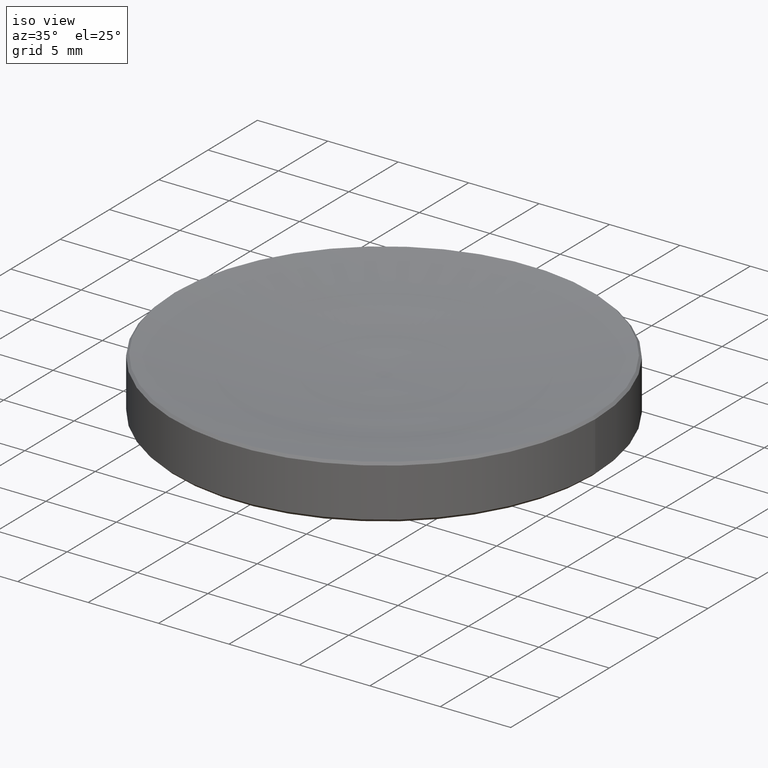
[diagram: clean part render]
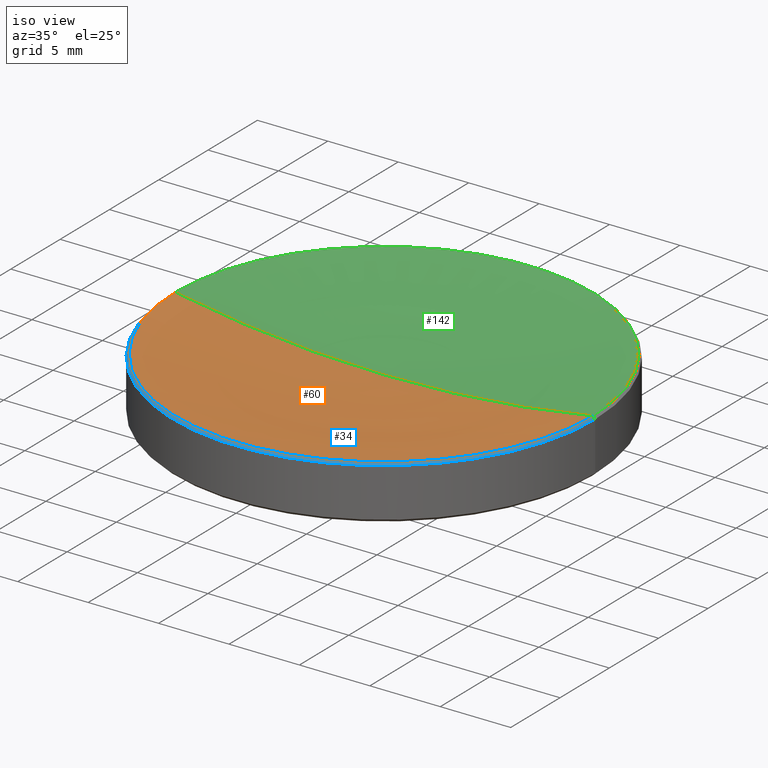
[diagram: same view with three faces highlighted in distinct colors, each labeled with its STEP entity id]
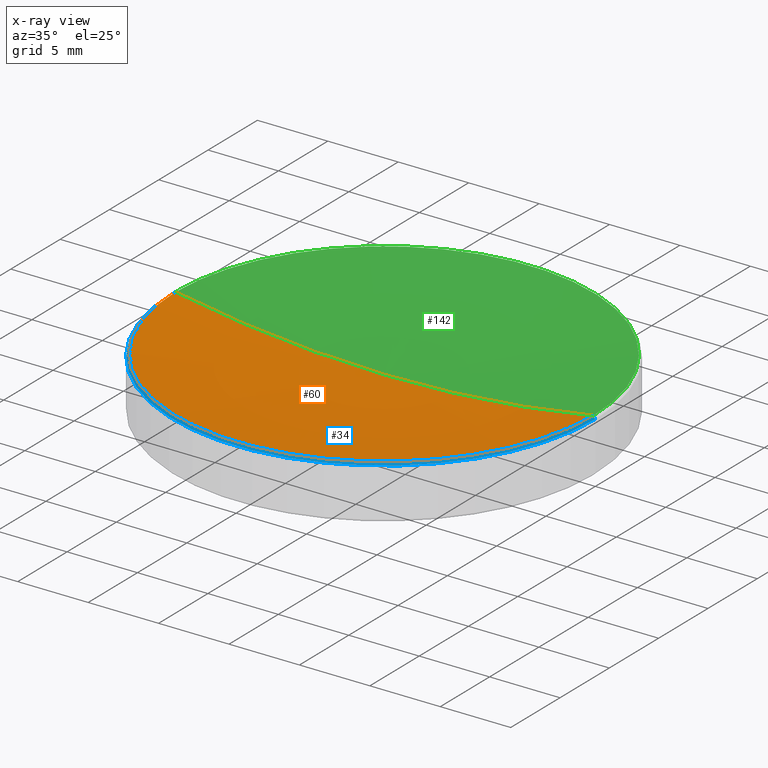
[diagram: x-ray of the same camera — body ghosted, the three highlighted faces saturated]
A machine part, iso view with three faces highlighted in distinct colors.
The next image is the same camera in x-ray (body ghosted, the three faces saturated) — at least one of them is partly hidden behind the body in this view.
Their STEP definitions:

[orange] entity #60 — the highlighted toroidal blend (fillet) surface has major radius 0.0166 mm and minor (blend) radius 82.62 mm.
#1 = EDGE_CURVE ( 'NONE', #86, #47, #165, .T. ) ;
#2 = DIRECTION ( 'NONE',  ( 1.000000000000000000, 0.000000000000000000, 0.000000000000000000 ) ) ;
#7 = CARTESIAN_POINT ( 'NONE',  ( 0.000000000000000000, 0.000000000000000000, 85.11999833166460405 ) ) ;
#20 = EDGE_LOOP ( 'NONE', ( #49, #140, #237 ) ) ;
#23 = EDGE_CURVE ( 'NONE', #90, #47, #71, .T. ) ;
#32 = DIRECTION ( 'NONE',  ( 1.000000000000000000, 0.000000000000000000, 0.000000000000000000 ) ) ;
#36 = AXIS2_PLACEMENT_3D ( 'NONE', #111, #166, #2 ) ;
#37 = AXIS2_PLACEMENT_3D ( 'NONE', #113, #93, #249 ) ;
#47 = VERTEX_POINT ( 'NONE', #226 ) ;
#49 = ORIENTED_EDGE ( 'NONE', *, *, #23, .F. ) ;
#58 = CIRCLE ( 'NONE', #37, 82.62000000000000455 ) ;
#60 = ADVANCED_FACE ( 'NONE', ( #250 ), #106, .F. ) ;
#68 = DIRECTION ( 'NONE',  ( 0.000000000000000000, 0.000000000000000000, -1.000000000000000000 ) ) ;
#71 = CIRCLE ( 'NONE', #156, 82.62000000000000455 ) ;
#74 = DIRECTION ( 'NONE',  ( -0.000000000000000000, -0.000000000000000000, 1.000000000000000000 ) ) ;
#86 = VERTEX_POINT ( 'NONE', #234 ) ;
#90 = VERTEX_POINT ( 'NONE', #117 ) ;
#93 = DIRECTION ( 'NONE',  ( 1.224646799147353207E-16, 1.000000000000000000, 0.000000000000000000 ) ) ;
#106 = TOROIDAL_SURFACE ( 'NONE', #125, 0.01660348570795434214, 82.62000000000000455 ) ;
#111 = CARTESIAN_POINT ( 'NONE',  ( 0.000000000000000000, 0.000000000000000000, 3.839013704481447853 ) ) ;
#113 = CARTESIAN_POINT ( 'NONE',  ( -0.01660348570795434214, 2.033340562693511406E-18, 85.11999833166460405 ) ) ;
#117 = CARTESIAN_POINT ( 'NONE',  ( 0.000000000000000000, 0.000000000000000000, 2.500000000000000000 ) ) ;
#123 = DIRECTION ( 'NONE',  ( 0.000000000000000000, -1.000000000000000000, 0.000000000000000000 ) ) ;
#125 = AXIS2_PLACEMENT_3D ( 'NONE', #7, #74, #32 ) ;
#140 = ORIENTED_EDGE ( 'NONE', *, *, #151, .T. ) ;
#151 = EDGE_CURVE ( 'NONE', #90, #86, #58, .T. ) ;
#156 = AXIS2_PLACEMENT_3D ( 'NONE', #171, #123, #68 ) ;
#165 = CIRCLE ( 'NONE', #36, 14.83098629551858849 ) ;
#166 = DIRECTION ( 'NONE',  ( -0.000000000000000000, -0.000000000000000000, 1.000000000000000000 ) ) ;
#171 = CARTESIAN_POINT ( 'NONE',  ( 0.01660348570795434214, 0.000000000000000000, 85.11999833166460405 ) ) ;
#226 = CARTESIAN_POINT ( 'NONE',  ( 14.83098629551863468, 0.000000000000000000, 3.839013704481447853 ) ) ;
#234 = CARTESIAN_POINT ( 'NONE',  ( -14.83098629551863468, 1.816271989500516018E-15, 3.839013704481447853 ) ) ;
#237 = ORIENTED_EDGE ( 'NONE', *, *, #1, .T. ) ;
#249 = DIRECTION ( 'NONE',  ( -1.000000000000000000, 1.224646799147353207E-16, 0.000000000000000000 ) ) ;
#250 = FACE_OUTER_BOUND ( 'NONE', #20, .T. ) ;

[blue] entity #34 — the highlighted conical surface has half-angle 45 deg.
#1 = EDGE_CURVE ( 'NONE', #86, #47, #165, .T. ) ;
#2 = DIRECTION ( 'NONE',  ( 1.000000000000000000, 0.000000000000000000, 0.000000000000000000 ) ) ;
#6 = VECTOR ( 'NONE', #212, 999.9999999999998863 ) ;
#15 = VERTEX_POINT ( 'NONE', #207 ) ;
#21 = VERTEX_POINT ( 'NONE', #266 ) ;
#34 = ADVANCED_FACE ( 'NONE', ( #65 ), #217, .T. ) ;
#36 = AXIS2_PLACEMENT_3D ( 'NONE', #111, #166, #2 ) ;
#42 = AXIS2_PLACEMENT_3D ( 'NONE', #229, #203, #48 ) ;
#47 = VERTEX_POINT ( 'NONE', #226 ) ;
#48 = DIRECTION ( 'NONE',  ( -1.000000000000000000, 0.000000000000000000, 0.000000000000000000 ) ) ;
#51 = CIRCLE ( 'NONE', #178, 15.00000000000000000 ) ;
#53 = EDGE_CURVE ( 'NONE', #86, #21, #110, .T. ) ;
#65 = FACE_OUTER_BOUND ( 'NONE', #127, .T. ) ;
#73 = CARTESIAN_POINT ( 'NONE',  ( 0.000000000000000000, 0.000000000000000000, 3.670000000000020357 ) ) ;
#86 = VERTEX_POINT ( 'NONE', #234 ) ;
#88 = EDGE_CURVE ( 'NONE', #47, #15, #157, .T. ) ;
#91 = DIRECTION ( 'NONE',  ( -0.7071067811865511255, 0.000000000000000000, -0.7071067811865440200 ) ) ;
#110 = LINE ( 'NONE', #173, #209 ) ;
#111 = CARTESIAN_POINT ( 'NONE',  ( 0.000000000000000000, 0.000000000000000000, 3.839013704481447853 ) ) ;
#114 = DIRECTION ( 'NONE',  ( 0.000000000000000000, 0.000000000000000000, -1.000000000000000000 ) ) ;
#127 = EDGE_LOOP ( 'NONE', ( #185, #242, #228, #205 ) ) ;
#157 = LINE ( 'NONE', #253, #6 ) ;
#161 = EDGE_CURVE ( 'NONE', #15, #21, #51, .T. ) ;
#165 = CIRCLE ( 'NONE', #36, 14.83098629551858849 ) ;
#166 = DIRECTION ( 'NONE',  ( -0.000000000000000000, -0.000000000000000000, 1.000000000000000000 ) ) ;
#173 = CARTESIAN_POINT ( 'NONE',  ( -14.83098629551858494, 0.000000000000000000, 3.839013704481433642 ) ) ;
#178 = AXIS2_PLACEMENT_3D ( 'NONE', #73, #114, #192 ) ;
#185 = ORIENTED_EDGE ( 'NONE', *, *, #88, .F. ) ;
#192 = DIRECTION ( 'NONE',  ( -1.000000000000000000, 0.000000000000000000, 0.000000000000000000 ) ) ;
#203 = DIRECTION ( 'NONE',  ( 0.000000000000000000, 0.000000000000000000, -1.000000000000000000 ) ) ;
#205 = ORIENTED_EDGE ( 'NONE', *, *, #161, .F. ) ;
#207 = CARTESIAN_POINT ( 'NONE',  ( 15.00000000000000000, 0.000000000000000000, 3.670000000000020357 ) ) ;
#209 = VECTOR ( 'NONE', #91, 999.9999999999998863 ) ;
#212 = DIRECTION ( 'NONE',  ( 0.7071067811865511255, 8.659560562354978464E-17, -0.7071067811865440200 ) ) ;
#217 = CONICAL_SURFACE ( 'NONE', #42, 14.83098629551858494, 0.7853981633974533860 ) ;
#226 = CARTESIAN_POINT ( 'NONE',  ( 14.83098629551863468, 0.000000000000000000, 3.839013704481447853 ) ) ;
#228 = ORIENTED_EDGE ( 'NONE', *, *, #53, .T. ) ;
#229 = CARTESIAN_POINT ( 'NONE',  ( 0.000000000000000000, 0.000000000000000000, 3.839013704481433642 ) ) ;
#234 = CARTESIAN_POINT ( 'NONE',  ( -14.83098629551863468, 1.816271989500516018E-15, 3.839013704481447853 ) ) ;
#242 = ORIENTED_EDGE ( 'NONE', *, *, #1, .F. ) ;
#253 = CARTESIAN_POINT ( 'NONE',  ( 14.83098629551858494, 1.816271989500509707E-15, 3.839013704481433642 ) ) ;
#266 = CARTESIAN_POINT ( 'NONE',  ( -15.00000000000000000, 1.836970198721029589E-15, 3.670000000000020357 ) ) ;

[green] entity #142 — the highlighted toroidal blend (fillet) surface has major radius 0.0166 mm and minor (blend) radius 82.62 mm.
#5 = CARTESIAN_POINT ( 'NONE',  ( 0.000000000000000000, 0.000000000000000000, 3.839013704481447853 ) ) ;
#23 = EDGE_CURVE ( 'NONE', #90, #47, #71, .T. ) ;
#30 = DIRECTION ( 'NONE',  ( 1.000000000000000000, 0.000000000000000000, 0.000000000000000000 ) ) ;
#33 = DIRECTION ( 'NONE',  ( -0.000000000000000000, -0.000000000000000000, 1.000000000000000000 ) ) ;
#37 = AXIS2_PLACEMENT_3D ( 'NONE', #113, #93, #249 ) ;
#45 = ORIENTED_EDGE ( 'NONE', *, *, #23, .T. ) ;
#47 = VERTEX_POINT ( 'NONE', #226 ) ;
#54 = TOROIDAL_SURFACE ( 'NONE', #119, 0.01660348570795434214, 82.62000000000000455 ) ;
#55 = DIRECTION ( 'NONE',  ( -0.000000000000000000, -0.000000000000000000, 1.000000000000000000 ) ) ;
#58 = CIRCLE ( 'NONE', #37, 82.62000000000000455 ) ;
#68 = DIRECTION ( 'NONE',  ( 0.000000000000000000, 0.000000000000000000, -1.000000000000000000 ) ) ;
#69 = EDGE_LOOP ( 'NONE', ( #225, #45, #246 ) ) ;
#71 = CIRCLE ( 'NONE', #156, 82.62000000000000455 ) ;
#80 = EDGE_CURVE ( 'NONE', #47, #86, #243, .T. ) ;
#86 = VERTEX_POINT ( 'NONE', #234 ) ;
#90 = VERTEX_POINT ( 'NONE', #117 ) ;
#93 = DIRECTION ( 'NONE',  ( 1.224646799147353207E-16, 1.000000000000000000, 0.000000000000000000 ) ) ;
#100 = FACE_OUTER_BOUND ( 'NONE', #69, .T. ) ;
#113 = CARTESIAN_POINT ( 'NONE',  ( -0.01660348570795434214, 2.033340562693511406E-18, 85.11999833166460405 ) ) ;
#117 = CARTESIAN_POINT ( 'NONE',  ( 0.000000000000000000, 0.000000000000000000, 2.500000000000000000 ) ) ;
#119 = AXIS2_PLACEMENT_3D ( 'NONE', #254, #55, #135 ) ;
#123 = DIRECTION ( 'NONE',  ( 0.000000000000000000, -1.000000000000000000, 0.000000000000000000 ) ) ;
#135 = DIRECTION ( 'NONE',  ( 1.000000000000000000, 0.000000000000000000, 0.000000000000000000 ) ) ;
#142 = ADVANCED_FACE ( 'NONE', ( #100 ), #54, .F. ) ;
#144 = AXIS2_PLACEMENT_3D ( 'NONE', #5, #33, #30 ) ;
#151 = EDGE_CURVE ( 'NONE', #90, #86, #58, .T. ) ;
#156 = AXIS2_PLACEMENT_3D ( 'NONE', #171, #123, #68 ) ;
#171 = CARTESIAN_POINT ( 'NONE',  ( 0.01660348570795434214, 0.000000000000000000, 85.11999833166460405 ) ) ;
#225 = ORIENTED_EDGE ( 'NONE', *, *, #151, .F. ) ;
#226 = CARTESIAN_POINT ( 'NONE',  ( 14.83098629551863468, 0.000000000000000000, 3.839013704481447853 ) ) ;
#234 = CARTESIAN_POINT ( 'NONE',  ( -14.83098629551863468, 1.816271989500516018E-15, 3.839013704481447853 ) ) ;
#243 = CIRCLE ( 'NONE', #144, 14.83098629551858849 ) ;
#246 = ORIENTED_EDGE ( 'NONE', *, *, #80, .T. ) ;
#249 = DIRECTION ( 'NONE',  ( -1.000000000000000000, 1.224646799147353207E-16, 0.000000000000000000 ) ) ;
#254 = CARTESIAN_POINT ( 'NONE',  ( 0.000000000000000000, 0.000000000000000000, 85.11999833166460405 ) ) ;